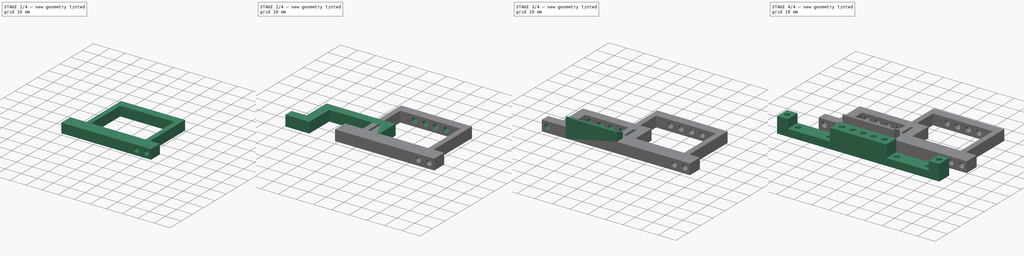
[diagram: build sequence overview — one tinted view per stage of 4, left to right]
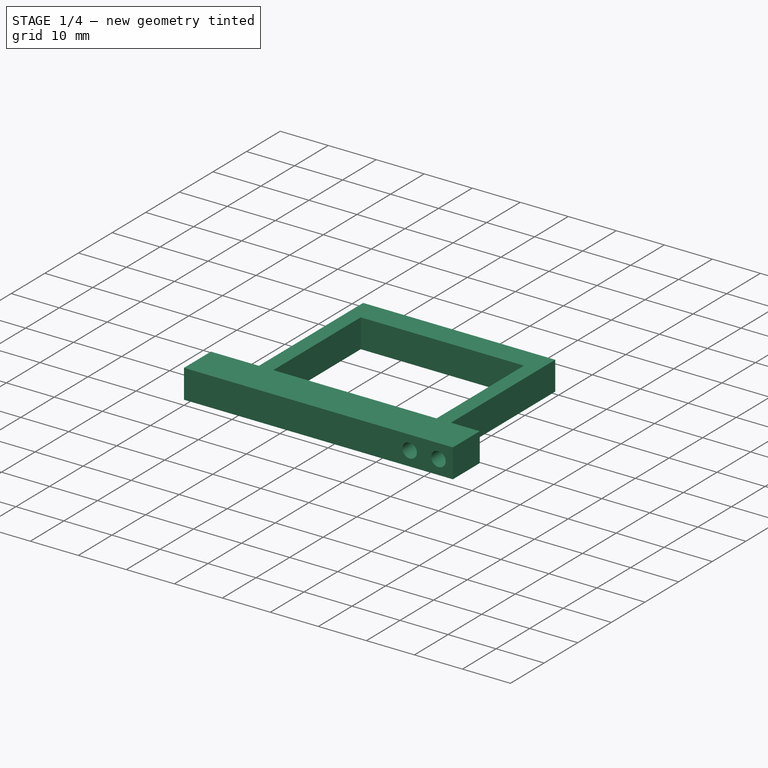
[diagram: stage 1 of 4 — iso view after this stage's code; geometry added in this stage tinted green]
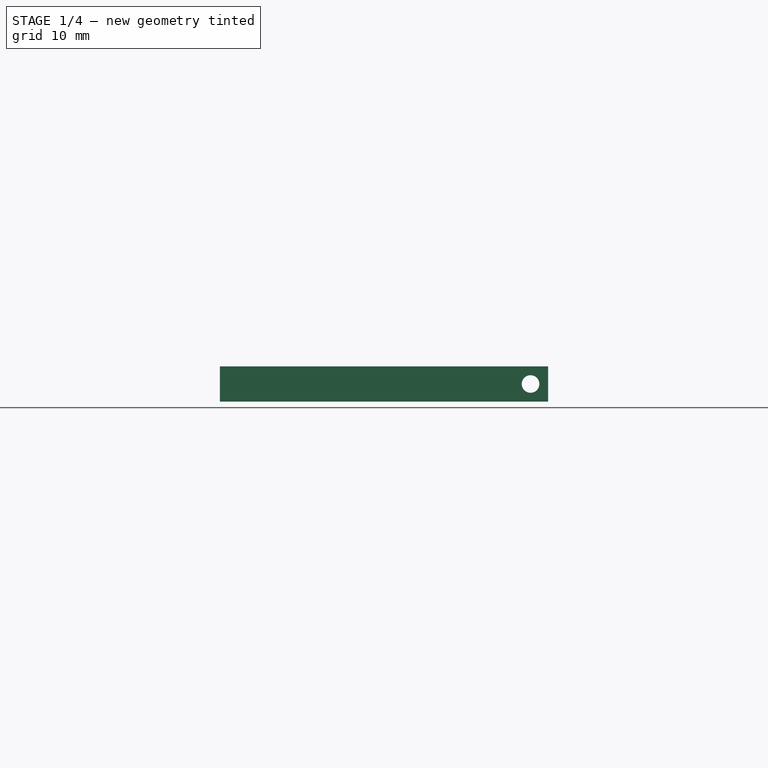
[diagram: stage 1 of 4 — front view after this stage's code; geometry added in this stage tinted green]
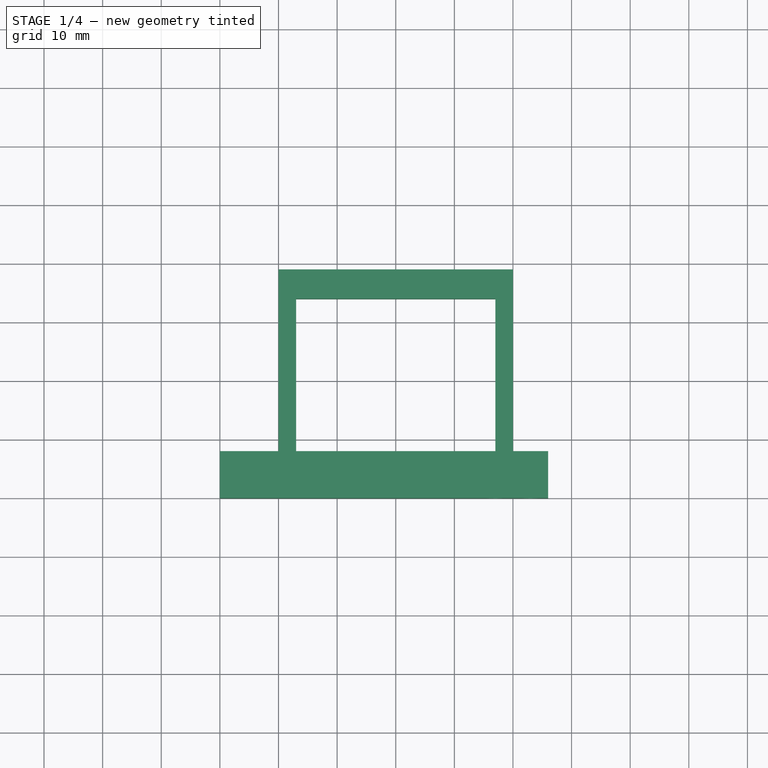
[diagram: stage 1 of 4 — top view after this stage's code; geometry added in this stage tinted green]
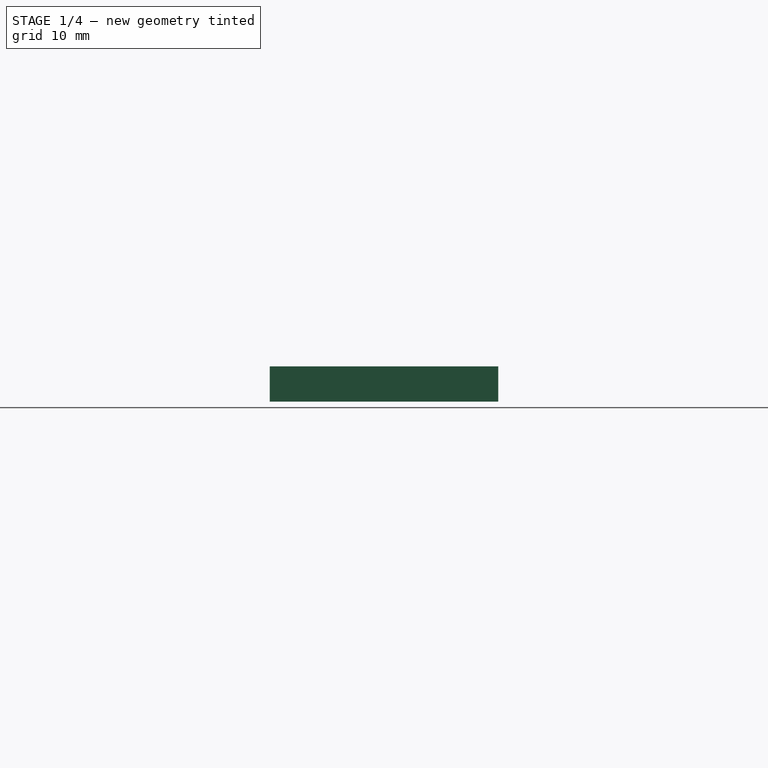
[diagram: stage 1 of 4 — right view after this stage's code; geometry added in this stage tinted green]
FCSTD DOCUMENT  (FreeCAD 0.20R29177 +426 (Git))
Label: BatteryMount
License: All rights reserved
LicenseURL: http://en.wikipedia.org/wiki/All_rights_reserved
objects: Sketcher::SketchObject×9, PartDesign::Pocket×5, PartDesign::Pad×4, PartDesign::Body×3, Spreadsheet::Sheet×1
note: 30 computed .brp shape members not serialized (recipe doc carries the construction recipe); baked Part::Feature solids carry a one-line shape summary decoded from their .brp

FEATURE [PartDesign::Body] Body001  label="Body001TranHolder"
  Group = -> [Sketch002,Pad001,Sketch003,Pocket001,Sketch004,Pad002,Sketch005,Pocket002]
  Origin = -> Origin001
  Tip = -> Pocket002
FEATURE [Sketcher::SketchObject] Sketch006
  FullyConstrained = true
  MapMode = 5
  Support = -> [XY_Plane002]
  expr: Constraints[11] = Spreadsheet.battaryHeight + Spreadsheet.battaryHolderTopThickness
  expr: Constraints[22] = Spreadsheet.battaryHeight
  expr: Constraints[23] = Spreadsheet.battaryWidth
  expr: Constraints[24] = Spreadsheet.battaryHolderBottomThickness
  expr: Constraints[25] = Spreadsheet.battaryHolderSideThickness
  expr: Constraints[29] = Spreadsheet.battaryHolderSideThickness
  expr: Constraints[2] = Spreadsheet.totalBattaryHolderLength
  expr: Constraints[5] = Spreadsheet.battaryHolderBottomThickness
  expr: Constraints[8] = Spreadsheet.screwToSide * 2
  sketch-geometry (12):
    g0: LineSegment StartX=1e-16 StartY=0 StartZ=0 EndX=56 EndY=0 EndZ=0
    g1: LineSegment StartX=56 StartY=0 StartZ=0 EndX=56 EndY=8 EndZ=0
    g2: LineSegment StartX=56 StartY=8 StartZ=0 EndX=50 EndY=8 EndZ=0
    g3: LineSegment StartX=50 StartY=8 StartZ=0 EndX=50 EndY=39 EndZ=0
    g4: LineSegment StartX=50 StartY=39 StartZ=0 EndX=10 EndY=39 EndZ=0
    g5: LineSegment StartX=13 StartY=34 StartZ=0 EndX=47 EndY=34 EndZ=0
    g6: LineSegment StartX=47 StartY=34 StartZ=0 EndX=47 EndY=8 EndZ=0
    g7: LineSegment StartX=47 StartY=8 StartZ=0 EndX=13 EndY=8 EndZ=0
    g8: LineSegment StartX=13 StartY=8 StartZ=0 EndX=13 EndY=34 EndZ=0
    g9: LineSegment StartX=1e-16 StartY=0 StartZ=0 EndX=1e-16 EndY=8 EndZ=0
    g10: LineSegment StartX=1e-16 StartY=8 StartZ=0 EndX=10 EndY=8 EndZ=0
    g11: LineSegment StartX=10 StartY=39 StartZ=0 EndX=10 EndY=8 EndZ=0
  constraints (35):
    c: Coincident(g0,g-1)
    c: Horizontal(g0)
    c: DistanceX(g0,g0) = 56
    c: Coincident(g1,g0)
    c: Vertical(g1)
    c: DistanceY(g1,g1) = 8
    c: Coincident(g2,g1)
    c: Horizontal(g2)
    c: DistanceX(g2,g2) = 6
    c: Coincident(g3,g2)
    c: Vertical(g3)
    c: DistanceY(g3,g3) = 31
    c: Coincident(g4,g3)
    c: Horizontal(g4)
    c: Coincident(g5,g6)
    c: Coincident(g6,g7)
    c: Coincident(g7,g8)
    c: Coincident(g8,g5)
    c: Horizontal(g5)
    c: Horizontal(g7)
    c: Vertical(g6)
    c: Vertical(g8)
    c: DistanceY(g6,g6) = 26
    c: DistanceX(g5,g5) = 34
    c: DistanceY(g0,g7) = 8
    c: DistanceX(g5,g3) = 3
    c: Coincident(g9,g0)
    c: Vertical(g9)
    c: Equal(g1,g9)
    c: DistanceX(g4,g5) = 3
    c: Coincident(g10,g9)
    c: Horizontal(g10)
    c: Coincident(g11,g4)
    c: Coincident(g11,g10)
    c: Vertical(g11)
FEATURE [PartDesign::Pad] Pad003
  Direction = (0,0,1)
  Length = 6
  Length2 = 10
  Profile = -> Sketch006
  ReferenceAxis = -> Sketch006 [N_Axis]
  Type = 0
  expr: Length = Spreadsheet.tranHolderPad
FEATURE [Sketcher::SketchObject] Sketch007
  ExternalGeometry = -> [Pad003]
  FullyConstrained = true
  MapMode = 5
  Placement = pos=(0,0,0) rot=(1,0,0;1.5708rad)
  Support = -> [XZ_Plane002]
  expr: Constraints[2] = Spreadsheet.screwToSide
  expr: Constraints[5] = Spreadsheet.screwToSide * 2
  expr: Constraints[9] = Spreadsheet.screwTight15
  sketch-geometry (4):
    g0: LineSegment StartX=56 StartY=3 StartZ=0 EndX=53 EndY=3 EndZ=0
    g1: LineSegment StartX=53 StartY=3 StartZ=0 EndX=47 EndY=3 EndZ=0
    g2: Circle CenterX=53 CenterY=3 CenterZ=0 NormalX=0 NormalY=0 NormalZ=1 AngleXU=0 Radius=1.5
    g3: Circle CenterX=47 CenterY=3 CenterZ=0 NormalX=0 NormalY=0 NormalZ=1 AngleXU=0 Radius=1.5
  constraints (10):
    c: Horizontal(g0)
    c: Symmetric(g-3,g-3,g0)
    c: DistanceX(g0,g0) = 3
    c: Coincident(g1,g0)
    c: Horizontal(g1)
    c: DistanceX(g1,g1) = 6
    c: Coincident(g2,g0)
    c: Coincident(g3,g1)
    c: Equal(g3,g2)
    c: Radius(g3) = 1.5
FEATURE [PartDesign::Pocket] Pocket003
  BaseFeature = -> Pad003
  Direction = (0,1,-2e-16)
  Length = 5
  Length2 = 5
  Profile = -> Sketch007
  ReferenceAxis = -> Sketch007 [N_Axis]
  Type = 2
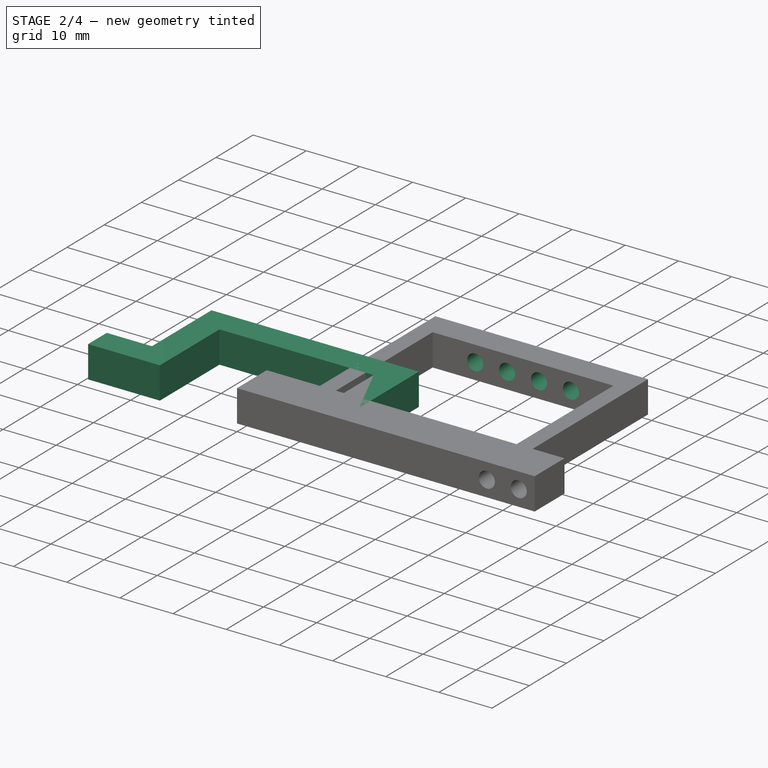
[diagram: stage 2 of 4 — iso view after this stage's code; geometry added in this stage tinted green]
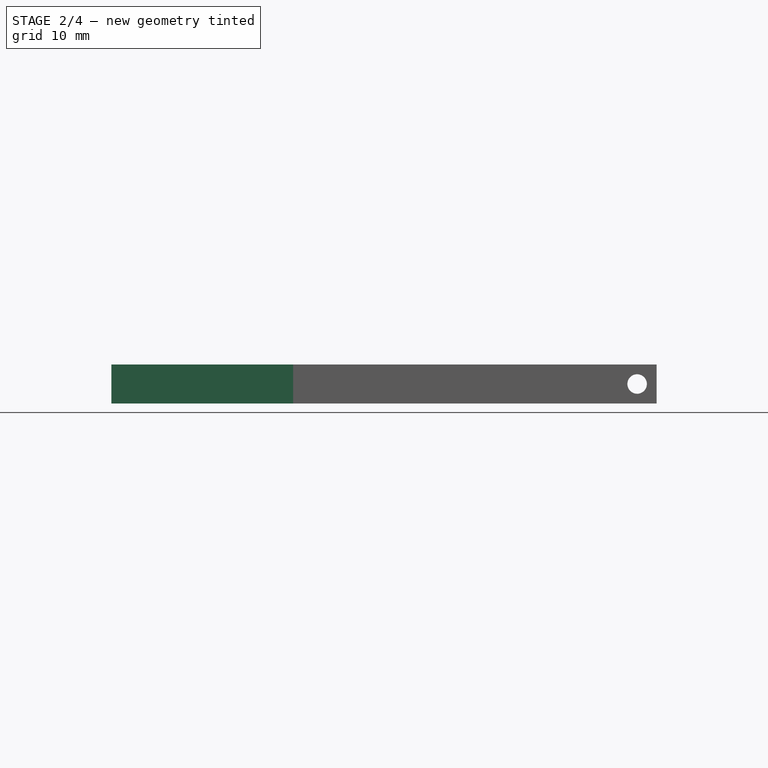
[diagram: stage 2 of 4 — front view after this stage's code; geometry added in this stage tinted green]
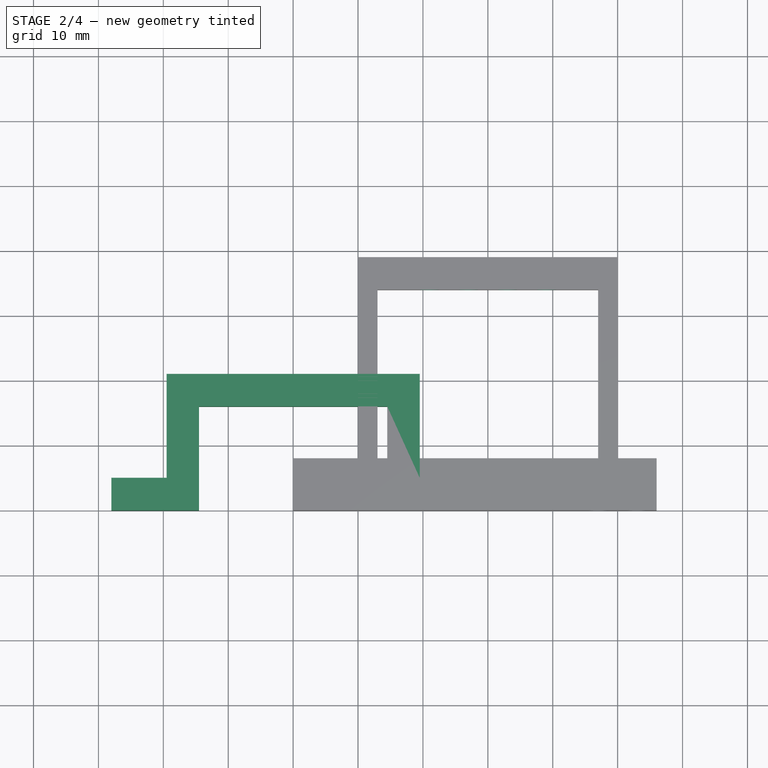
[diagram: stage 2 of 4 — top view after this stage's code; geometry added in this stage tinted green]
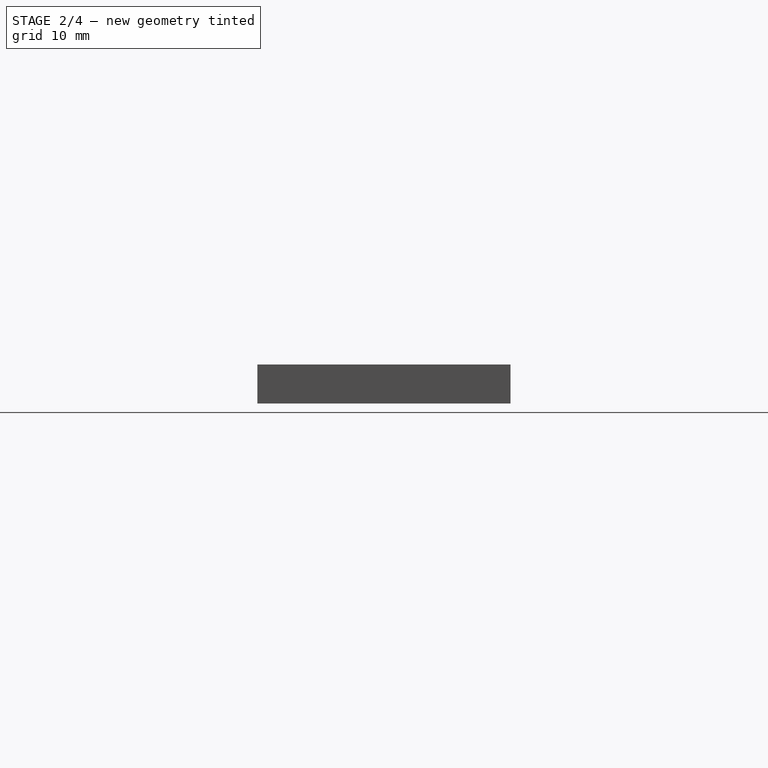
[diagram: stage 2 of 4 — right view after this stage's code; geometry added in this stage tinted green]
FEATURE [PartDesign::Body] Body  label="BodyBaseConn"
  Group = -> [Sketch,Pad,Sketch001,Pocket]
  Origin = -> Origin
  Tip = -> Pocket
FEATURE [Sketcher::SketchObject] Sketch002
  FullyConstrained = true
  MapMode = 5
  Support = -> [XY_Plane001]
  expr: Constraints[24] = Spreadsheet.overRemoteHeight
  expr: Constraints[25] = Spreadsheet.overRemoteThickNess
  expr: Constraints[26] = Spreadsheet.overRemoteThickNess
  expr: Constraints[27] = Spreadsheet.overRemoteThickNess
  expr: Constraints[28] = Spreadsheet.totalOverRemoteDist
  expr: Constraints[29] = Spreadsheet.remoteContentLen
  sketch-geometry (12):
    g0: LineSegment StartX=-28 StartY=0 StartZ=0 EndX=-14.5 EndY=0 EndZ=0
    g1: LineSegment StartX=-28 StartY=0 StartZ=0 EndX=-28 EndY=5 EndZ=0
    g2: LineSegment StartX=-28 StartY=5 StartZ=0 EndX=-19.5 EndY=5 EndZ=0
    g3: LineSegment StartX=-19.5 StartY=5 StartZ=0 EndX=-19.5 EndY=21 EndZ=0
    g4: LineSegment StartX=-19.5 StartY=21 StartZ=0 EndX=19.5 EndY=21 EndZ=0
    g5: LineSegment StartX=19.5 StartY=21 StartZ=0 EndX=19.5 EndY=5 EndZ=0
    g6: LineSegment StartX=19.5 StartY=5 StartZ=0 EndX=28 EndY=5 EndZ=0
    g7: LineSegment StartX=28 StartY=5 StartZ=0 EndX=28 EndY=0 EndZ=0
    g8: LineSegment StartX=28 StartY=0 StartZ=0 EndX=14.5 EndY=0 EndZ=0
    g9: LineSegment StartX=14.5 StartY=0 StartZ=0 EndX=14.5 EndY=16 EndZ=0
    g10: LineSegment StartX=14.5 StartY=16 StartZ=0 EndX=-14.5 EndY=16 EndZ=0
    g11: LineSegment StartX=-14.5 StartY=16 StartZ=0 EndX=-14.5 EndY=0 EndZ=0
  constraints (30):
    c: PointOnObject(g0,g-1)
    c: Coincident(g1,g0)
    c: Vertical(g1)
    c: Coincident(g2,g1)
    c: Horizontal(g2)
    c: Coincident(g3,g2)
    c: Vertical(g3)
    c: Coincident(g4,g3)
    c: Coincident(g5,g4)
    c: Coincident(g6,g5)
    c: Coincident(g7,g6)
    c: Coincident(g8,g7)
    c: PointOnObject(g8,g-1)
    c: Coincident(g9,g8)
    c: Vertical(g9)
    c: Coincident(g10,g9)
    c: Coincident(g11,g10)
    c: Coincident(g0,g11)
    c: Symmetric(g8,g0,g-2)
    c: Symmetric(g7,g0,g-2)
    c: Symmetric(g5,g2,g-2)
    c: Symmetric(g4,g3,g-2)
    c: Symmetric(g10,g9,g-2)
    c: Symmetric(g6,g1,g-2)
    c: DistanceY(g9,g9) = 16
    c: DistanceY(g9,g4) = 5
    c: DistanceX(g2,g0) = 5
    c: DistanceY(g1,g1) = 5
    c: DistanceX(g0,g7) = 56
    c: DistanceX(g10,g10) = 29
FEATURE [PartDesign::Pad] Pad001
  Direction = (0,0,1)
  Length = 6
  Length2 = 10
  Profile = -> Sketch002
  ReferenceAxis = -> Sketch002 [N_Axis]
  Type = 0
  expr: Length = Spreadsheet.tranHolderPad
FEATURE [Sketcher::SketchObject] Sketch008
  ExternalGeometry = -> [Pocket003]
  FullyConstrained = false
  MapMode = 5
  Placement = pos=(0,39,0) rot=(0,0.707107,0.707107;3.14159rad)
  Support = -> [Pocket003]
  expr: Constraints[13] = Spreadsheet.screwTight15
  expr: Constraints[14] = Spreadsheet.screwToSide
  expr: Constraints[15] = Spreadsheet.screwToSide * 2
  sketch-geometry (7):
    g0: LineSegment StartX=-30 StartY=6 StartZ=0 EndX=-30 EndY=3 EndZ=0
    g1: LineSegment StartX=-30 StartY=3 StartZ=0 EndX=-10 EndY=3 EndZ=0
    g2: LineSegment StartX=-30 StartY=3 StartZ=0 EndX=-45.1744 EndY=3 EndZ=0
    g3: Circle CenterX=-33 CenterY=3 CenterZ=0 NormalX=0 NormalY=0 NormalZ=1 AngleXU=0 Radius=1.5
    g4: Circle CenterX=-27 CenterY=3 CenterZ=0 NormalX=0 NormalY=0 NormalZ=1 AngleXU=0 Radius=1.5
    g5: Circle CenterX=-21 CenterY=3 CenterZ=0 NormalX=0 NormalY=0 NormalZ=1 AngleXU=0 Radius=1.5
    g6: Circle CenterX=-39 CenterY=3 CenterZ=0 NormalX=0 NormalY=0 NormalZ=1 AngleXU=0 Radius=1.5
  constraints (17):
    c: Symmetric(g-3,g-3,g0)
    c: PointOnObject(g0,g-3)
    c: Coincident(g1,g0)
    c: Horizontal(g1)
    c: Coincident(g2,g0)
    c: Horizontal(g2)
    c: PointOnObject(g3,g2)
    c: PointOnObject(g5,g1)
    c: Symmetric(g5,g6,g0)
    c: Symmetric(g4,g3,g0)
    c: Equal(g6,g3)
    c: Equal(g6,g4)
    c: Equal(g6,g5)
    c: Radius(g6) = 1.5
    c: DistanceX(g0,g4) = 3
    c: DistanceX(g4,g5) = 6
    c: Symmetric(g-5,g-5,g1)
FEATURE [PartDesign::Pocket] Pocket004
  BaseFeature = -> Pocket003
  Direction = (0,-1,2e-16)
  Length = 5
  Length2 = 5
  Profile = -> Sketch008
  ReferenceAxis = -> Sketch008 [N_Axis]
  Type = 2
FEATURE [PartDesign::Body] Body002  label="Body002BattaryHolder"
  Group = -> [Sketch006,Pad003,Sketch007,Pocket003,Sketch008,Pocket004]
  Origin = -> Origin002
  Tip = -> Pocket004
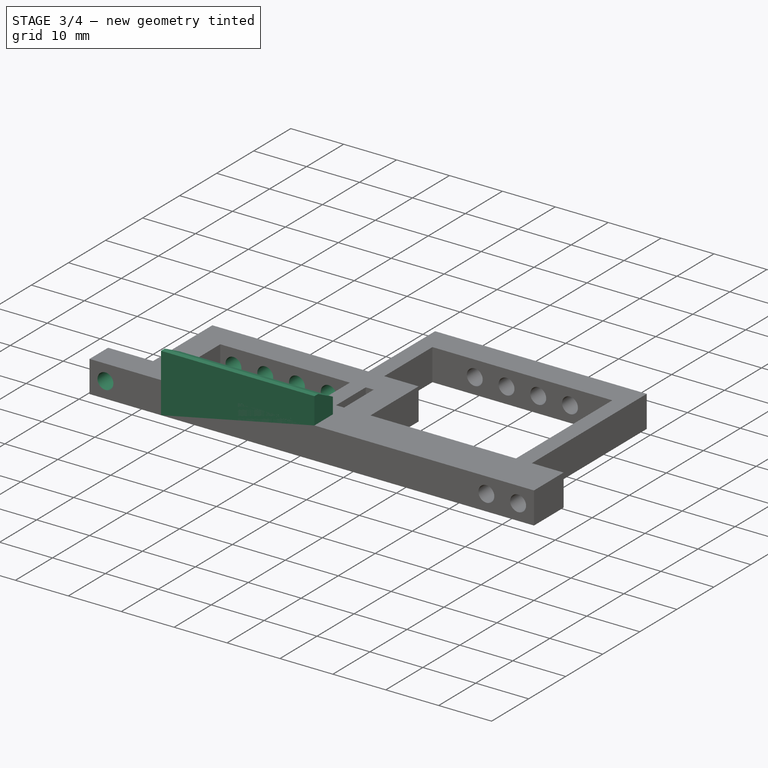
[diagram: stage 3 of 4 — iso view after this stage's code; geometry added in this stage tinted green]
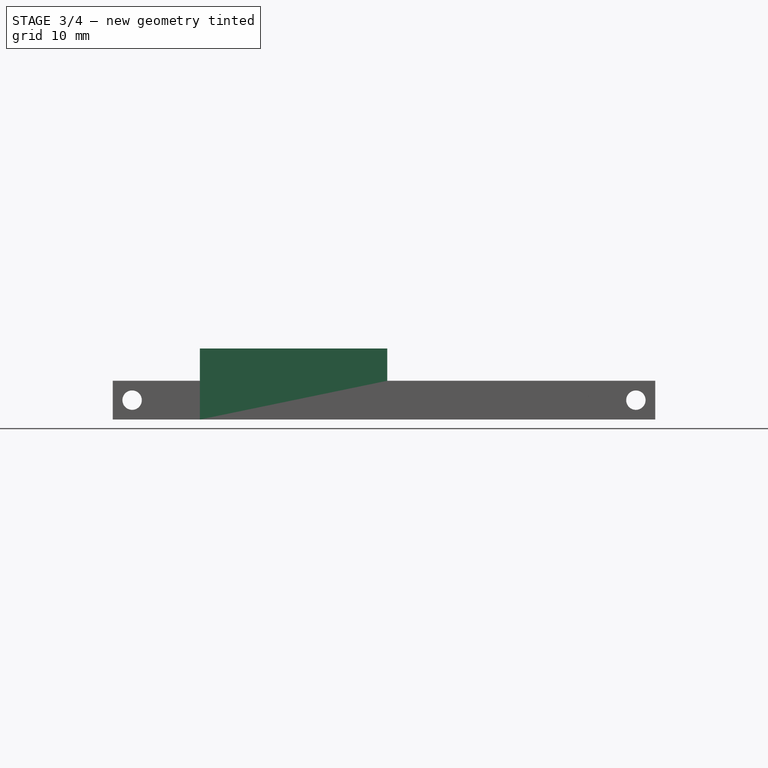
[diagram: stage 3 of 4 — front view after this stage's code; geometry added in this stage tinted green]
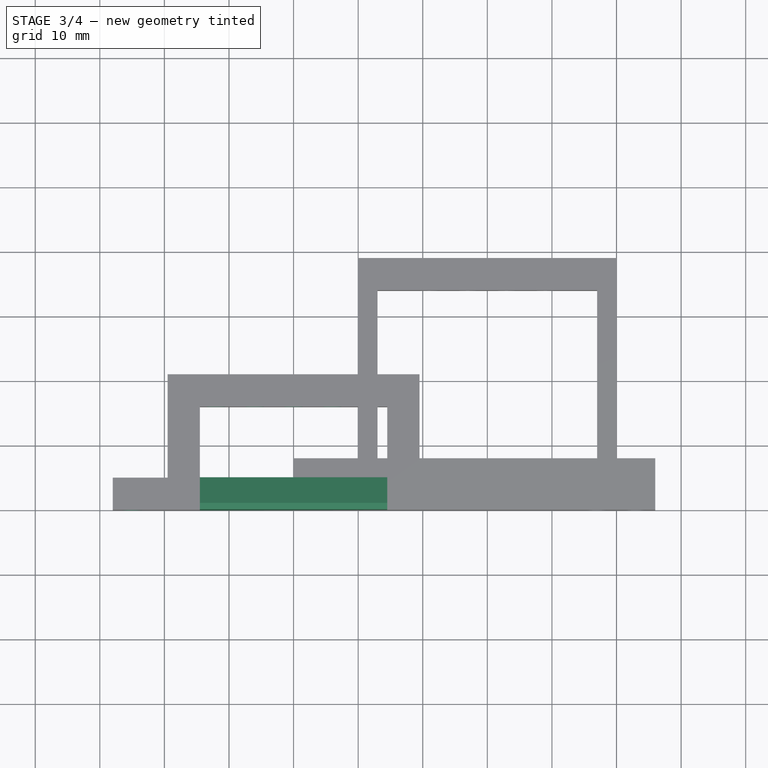
[diagram: stage 3 of 4 — top view after this stage's code; geometry added in this stage tinted green]
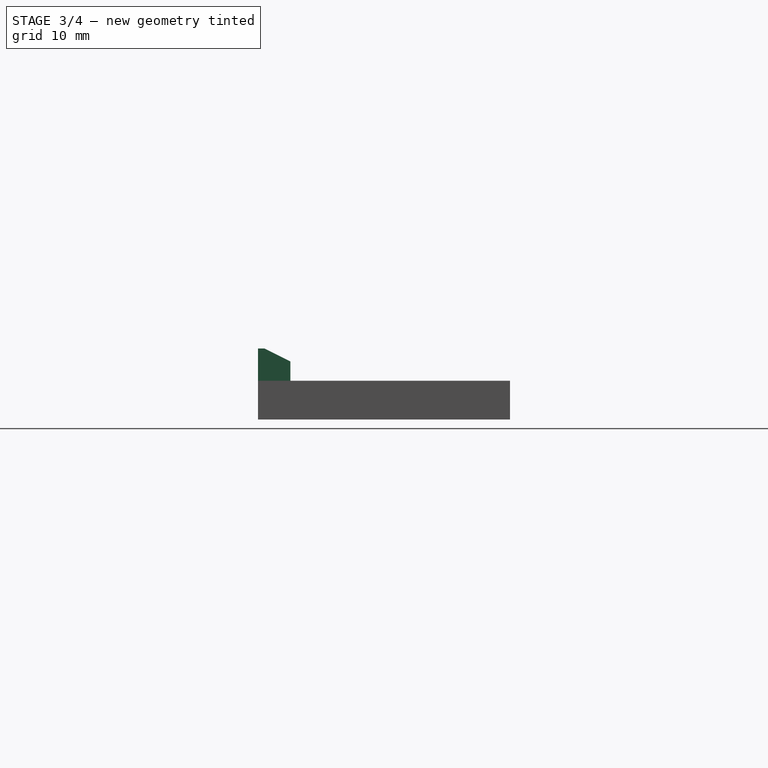
[diagram: stage 3 of 4 — right view after this stage's code; geometry added in this stage tinted green]
FEATURE [Sketcher::SketchObject] Sketch003
  FullyConstrained = true
  MapMode = 5
  Placement = pos=(0,0,0) rot=(1,0,0;1.5708rad)
  Support = -> [XZ_Plane001]
  expr: Constraints[18] = Spreadsheet.screwTight15
  expr: Constraints[19] = Spreadsheet.tranHolderPad / 2
  expr: Constraints[1] = Spreadsheet.overRemoteScrewDist
  expr: Constraints[8] = Spreadsheet.doubleScrewDist
  expr: Constraints[9] = Spreadsheet.doubleScrewDist
  sketch-geometry (8):
    g0: LineSegment StartX=-25 StartY=3 StartZ=0 EndX=25 EndY=3 EndZ=0
    g1: Circle CenterX=-25 CenterY=3 CenterZ=0 NormalX=0 NormalY=0 NormalZ=1 AngleXU=0 Radius=1.5
    g2: Circle CenterX=25 CenterY=3 CenterZ=0 NormalX=0 NormalY=0 NormalZ=1 AngleXU=0 Radius=1.5
    g3: Circle CenterX=0 CenterY=3 CenterZ=0 NormalX=0 NormalY=0 NormalZ=1 AngleXU=0 Radius=1.5
    g4: Circle CenterX=-6 CenterY=3 CenterZ=0 NormalX=0 NormalY=0 NormalZ=1 AngleXU=0 Radius=1.5
    g5: Circle CenterX=6 CenterY=3 CenterZ=0 NormalX=0 NormalY=0 NormalZ=1 AngleXU=0 Radius=1.5
    g6: Circle CenterX=-12 CenterY=3 CenterZ=0 NormalX=0 NormalY=0 NormalZ=1 AngleXU=0 Radius=1.5
    g7: Circle CenterX=12 CenterY=3 CenterZ=0 NormalX=0 NormalY=0 NormalZ=1 AngleXU=0 Radius=1.5
  constraints (20):
    c: Symmetric(g0,g0,g-2)
    c: DistanceX(g0,g0) = 50
    c: Coincident(g1,g0)
    c: Coincident(g2,g0)
    c: PointOnObject(g3,g0)
    c: PointOnObject(g3,g-2)
    c: PointOnObject(g4,g0)
    c: PointOnObject(g6,g0)
    c: DistanceX(g4,g3) = 6
    c: DistanceX(g6,g4) = 6
    c: Symmetric(g6,g7,g-2)
    c: Symmetric(g4,g5,g-2)
    c: Equal(g1,g6)
    c: Equal(g1,g4)
    c: Equal(g1,g3)
    c: Equal(g1,g5)
    c: Equal(g1,g7)
    c: Equal(g1,g2)
    c: Radius(g1) = 1.5
    c: DistanceY(g-1,g1) = 3
FEATURE [PartDesign::Pocket] Pocket001  label="Pocket001ForESC"
  BaseFeature = -> Pad001
  Direction = (0,1,-2e-16)
  Length = 5
  Length2 = 5
  Midplane = true
  Profile = -> Sketch003
  ReferenceAxis = -> Sketch003 [N_Axis]
  Type = 1
FEATURE [Sketcher::SketchObject] Sketch004
  ExternalGeometry = -> [Pocket001]
  FullyConstrained = true
  MapMode = 5
  Support = -> [XY_Plane001]
  expr: Constraints[10] = Spreadsheet.overRemoteThickNess
  sketch-geometry (4):
    g0: LineSegment StartX=-14.5 StartY=5 StartZ=0 EndX=14.5 EndY=5 EndZ=0
    g1: LineSegment StartX=14.5 StartY=5 StartZ=0 EndX=14.5 EndY=0 EndZ=0
    g2: LineSegment StartX=14.5 StartY=0 StartZ=0 EndX=-14.5 EndY=0 EndZ=0
    g3: LineSegment StartX=-14.5 StartY=0 StartZ=0 EndX=-14.5 EndY=5 EndZ=0
  constraints (12):
    c: Coincident(g0,g1)
    c: Coincident(g1,g2)
    c: Coincident(g2,g3)
    c: Coincident(g3,g0)
    c: Horizontal(g0)
    c: Horizontal(g2)
    c: Vertical(g1)
    c: Vertical(g3)
    c: PointOnObject(g0,g-3)
    c: PointOnObject(g1,g-4)
    c: DistanceY(g3,g3) = 5
    c: PointOnObject(g1,g-1)
FEATURE [PartDesign::Pad] Pad002  label="Pad002ForTran"
  BaseFeature = -> Pocket001
  Direction = (0,0,1)
  Length = 11
  Length2 = 10
  Profile = -> Sketch004
  ReferenceAxis = -> Sketch004 [N_Axis]
  Type = 0
  expr: Length = Spreadsheet.tranHolderPad + 5
FEATURE [Sketcher::SketchObject] Sketch005
  ExternalGeometry = -> [Pad002]
  FullyConstrained = true
  MapMode = 5
  Placement = pos=(0,0,0) rot=(0.57735,0.57735,0.57735;2.0944rad)
  Support = -> [YZ_Plane001]
  sketch-geometry (3):
    g0: LineSegment StartX=1 StartY=11 StartZ=0 EndX=5 EndY=9 EndZ=0
    g1: LineSegment StartX=1 StartY=11 StartZ=0 EndX=5 EndY=11 EndZ=0
    g2: LineSegment StartX=5 StartY=11 StartZ=0 EndX=5 EndY=9 EndZ=0
  constraints (8):
    c: PointOnObject(g0,g-4)
    c: PointOnObject(g0,g-3)
    c: Coincident(g1,g0)
    c: Coincident(g2,g1)
    c: Coincident(g2,g0)
    c: Coincident(g1,g-4)
    c: DistanceY(g-3,g0) = 3
    c: DistanceX(g1,g1) = 4
FEATURE [PartDesign::Pocket] Pocket002
  BaseFeature = -> Pad002
  Direction = (-1,2e-16,-3e-16)
  Length = 5
  Length2 = 5
  Midplane = true
  Profile = -> Sketch005
  ReferenceAxis = -> Sketch005 [N_Axis]
  Type = 1
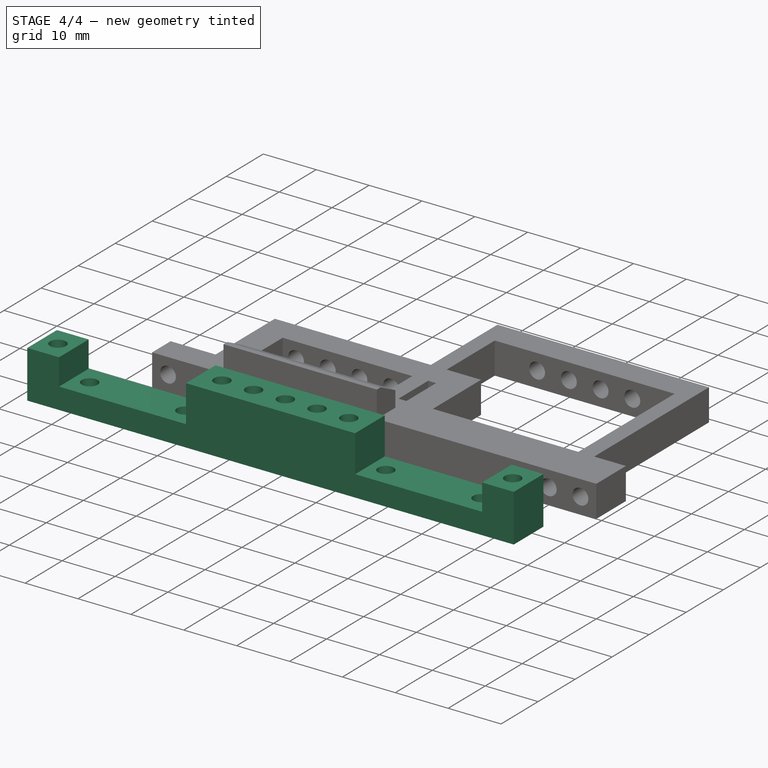
[diagram: stage 4 of 4 — iso view after this stage's code; geometry added in this stage tinted green]
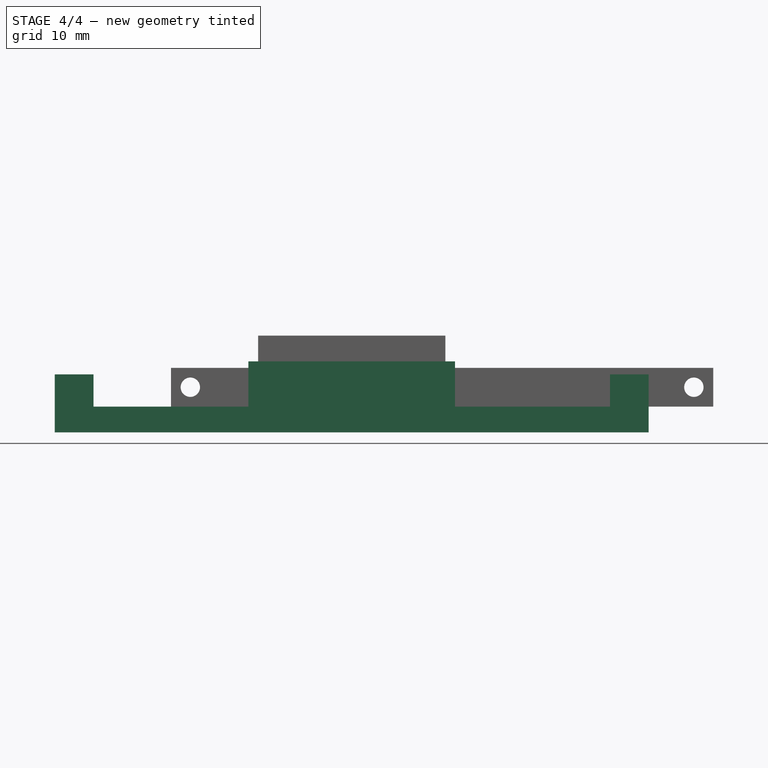
[diagram: stage 4 of 4 — front view after this stage's code; geometry added in this stage tinted green]
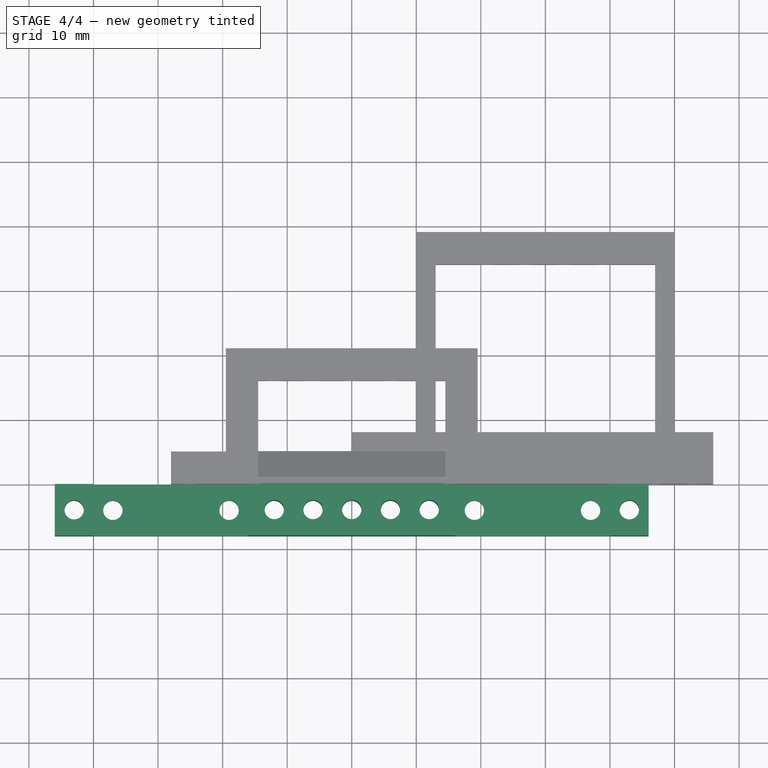
[diagram: stage 4 of 4 — top view after this stage's code; geometry added in this stage tinted green]
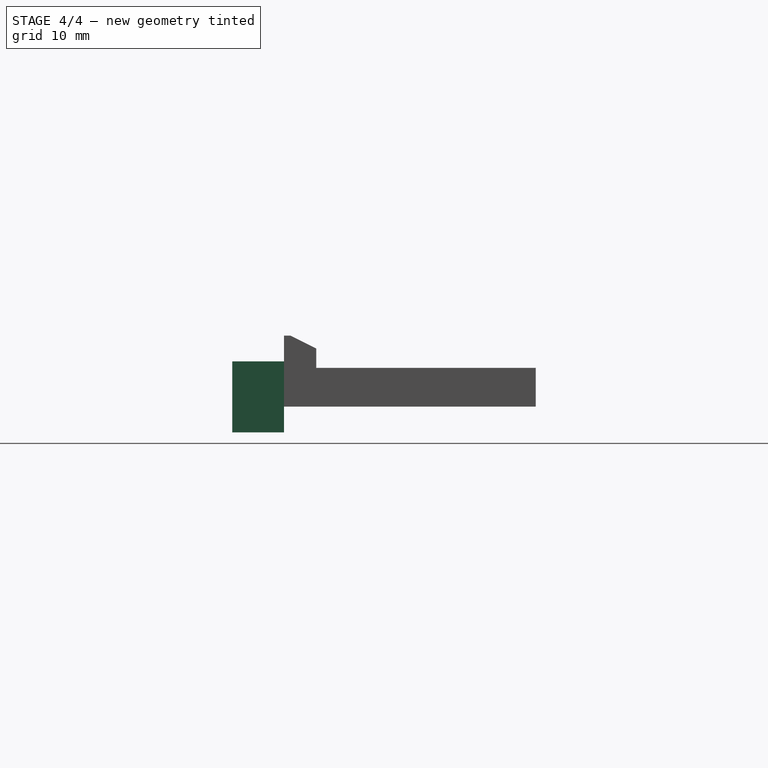
[diagram: stage 4 of 4 — right view after this stage's code; geometry added in this stage tinted green]
FEATURE [Spreadsheet::Sheet] Spreadsheet
  cells = A2=frontMountInnerWidth; B2(frontMountInnerWidth)=32; A3=frontMountOuterWidth; B3(frontMountOuterWidth)=80; A4=frontMountSideExt; B4(frontMountSideExt)=6; A5=frontMountPad; B5(frontMountPad)=8; A6=frontMountDepth; B6(frontMountDepth)=5; A7=frontMountUpperDepth; B7(frontMountUpperDepth)=4; A8=screwToSide; B8(screwToSide)=3; A9=screwTight15; B9(screwTight15)=1.5; A11=frontMountCenterDepth; B11(frontMountCenterDepth)=7; A13=overRemoteScrewDist; B13(overRemoteScrewDist)=50; A14=overRemoteShrink; B14(overRemoteShrink)=4; A15=overRemoteThickNess; B15(overRemoteThickNess)=5; A16=totalOverRemoteDist; B16(totalOverRemoteDist)==overRemoteScrewDist + screwToSide * 2; A17=remoteHeight; B17=20; A18=overRemoteHeight; B18(overRemoteHeight)==B17 - frontMountUpperDepth; A19=totalOverRemoteHeight; B19(totalOverRemoteHeight)==overRemoteHeight + overRemoteThickNess; A20=remoteContentLen; B20(remoteContentLen)=29; A21=doubleScrewDist; B21(doubleScrewDist)==B8 * 2; A22=tranHolderPad; B22(tranHolderPad)=6; A25=battaryWidth; B25(battaryWidth)=34; A26=battaryHeight; B26(battaryHeight)=26; A27=totalBattaryHolderLength; B27(totalBattaryHolderLength)==54 + 2; A28=battaryHolderBottomThickness; B28(battaryHolderBottomThickness)=8; A29=battaryHolderTopThickness; B29(battaryHolderTopThickness)=5; A30=battaryHolderSideThickness; B30(battaryHolderSideThickness)=3
FEATURE [Sketcher::SketchObject] Sketch
  FullyConstrained = true
  MapMode = 5
  Placement = pos=(0,0,0) rot=(1,0,0;1.5708rad)
  Support = -> [XZ_Plane]
  expr: Constraints[11] = Spreadsheet.frontMountSideExt
  expr: Constraints[18] = -Spreadsheet.frontMountUpperDepth
  expr: Constraints[1] = Spreadsheet.frontMountInnerWidth
  expr: Constraints[23] = -Spreadsheet.frontMountDepth
  expr: Constraints[28] = Spreadsheet.frontMountSideExt
  expr: Constraints[39] = Spreadsheet.frontMountInnerWidth
  expr: Constraints[44] = -Spreadsheet.frontMountCenterDepth
  expr: Constraints[6] = Spreadsheet.frontMountOuterWidth
  sketch-geometry (18):
    g0: LineSegment StartX=-16 StartY=-4 StartZ=0 EndX=16 EndY=-4 EndZ=0
    g1: LineSegment StartX=-16 StartY=-4 StartZ=0 EndX=-40 EndY=-4 EndZ=0
    g2: LineSegment StartX=16 StartY=-4 StartZ=0 EndX=40 EndY=-4 EndZ=0
    g3: LineSegment StartX=-40 StartY=-4 StartZ=0 EndX=-46 EndY=-4 EndZ=0
    g4: LineSegment StartX=40 StartY=-4 StartZ=0 EndX=46 EndY=-4 EndZ=0
    g5: LineSegment StartX=-46 StartY=-4 StartZ=0 EndX=-46 EndY=0 EndZ=0
    g6: LineSegment StartX=46 StartY=-4 StartZ=0 EndX=46 EndY=0 EndZ=0
    g7: LineSegment StartX=-46 StartY=0 StartZ=0 EndX=-46 EndY=5 EndZ=0
    g8: LineSegment StartX=46 StartY=0 StartZ=0 EndX=46 EndY=5 EndZ=0
    g9: LineSegment StartX=-46 StartY=5 StartZ=0 EndX=-40 EndY=5 EndZ=0
    g10: LineSegment StartX=46 StartY=5 StartZ=0 EndX=40 EndY=5 EndZ=0
    g11: LineSegment StartX=-40 StartY=5 StartZ=0 EndX=-40 EndY=0 EndZ=0
    g12: LineSegment StartX=40 StartY=5 StartZ=0 EndX=40 EndY=0 EndZ=0
    g13: LineSegment StartX=-40 StartY=0 StartZ=0 EndX=-16 EndY=0 EndZ=0
    g14: LineSegment StartX=40 StartY=0 StartZ=0 EndX=16 EndY=0 EndZ=0
    g15: LineSegment StartX=-16 StartY=0 StartZ=0 EndX=-16 EndY=7 EndZ=0
    g16: LineSegment StartX=16 StartY=0 StartZ=0 EndX=16 EndY=7 EndZ=0
    g17: LineSegment StartX=-16 StartY=7 StartZ=0 EndX=16 EndY=7 EndZ=0
  constraints (47):
    c: Symmetric(g0,g0,g-2)
    c: DistanceX(g0,g0) = 32
    c: Coincident(g1,g0)
    c: Horizontal(g1)
    c: Coincident(g2,g0)
    c: Symmetric(g2,g1,g-2)
    c: DistanceX(g1,g2) = 80
    c: Coincident(g3,g1)
    c: Horizontal(g3)
    c: Coincident(g4,g2)
    c: Symmetric(g4,g3,g-2)
    c: DistanceX(g4,g4) = 6
    c: Coincident(g5,g3)
    c: PointOnObject(g5,g-1)
    c: Vertical(g5)
    c: Coincident(g6,g4)
    c: PointOnObject(g6,g-1)
    c: Vertical(g6)
    c: DistanceY(g6,g6) = -4
    c: Coincident(g7,g5)
    c: Vertical(g7)
    c: Coincident(g8,g6)
    c: Symmetric(g8,g7,g-2)
    c: DistanceY(g8,g8) = -5
    c: Coincident(g9,g7)
    c: Horizontal(g9)
    c: Coincident(g10,g8)
    c: Symmetric(g9,g10,g-2)
    c: DistanceX(g9,g9) = 6
    c: Coincident(g11,g9)
    c: PointOnObject(g11,g-1)
    c: Vertical(g11)
    c: Coincident(g12,g10)
    c: PointOnObject(g12,g-1)
    c: Vertical(g12)
    c: Coincident(g13,g11)
    c: Coincident(g14,g12)
    c: Horizontal(g13)
    c: Symmetric(g13,g14,g-2)
    c: DistanceX(g13,g14) = 32
    c: Coincident(g15,g13)
    c: Vertical(g15)
    c: Coincident(g16,g14)
    c: Symmetric(g16,g15,g-2)
    c: DistanceY(g16,g16) = -7
    c: Coincident(g17,g15)
    c: Coincident(g17,g16)
FEATURE [PartDesign::Pad] Pad
  Direction = (0,-1,-2e-16)
  Length = 8
  Length2 = 10
  Placement = pos=(0,0,0) rot=(1,0,0;1.5708rad)
  Profile = -> Sketch
  ReferenceAxis = -> Sketch [N_Axis]
  Type = 0
  expr: Length = Spreadsheet.frontMountPad
FEATURE [Sketcher::SketchObject] Sketch001
  FullyConstrained = true
  MapMode = 5
  Support = -> [XY_Plane]
  expr: Constraints[13] = Spreadsheet.screwToSide * 2
  expr: Constraints[19] = Spreadsheet.screwToSide * 2
  expr: Constraints[1] = Spreadsheet.frontMountOuterWidth + Spreadsheet.screwToSide * 2
  expr: Constraints[20] = Spreadsheet.screwToSide * 2
  expr: Constraints[25] = Spreadsheet.frontMountOuterWidth - Spreadsheet.screwToSide * 2
  expr: Constraints[26] = Spreadsheet.frontMountInnerWidth + Spreadsheet.screwToSide * 2
  expr: Constraints[8] = Spreadsheet.screwTight15
  expr: Constraints[9] = -Spreadsheet.frontMountPad / 2
  sketch-geometry (12):
    g0: LineSegment StartX=-43 StartY=-4 StartZ=0 EndX=43 EndY=-4 EndZ=0
    g1: Circle CenterX=-43 CenterY=-4 CenterZ=0 NormalX=0 NormalY=0 NormalZ=1 AngleXU=0 Radius=1.5
    g2: Circle CenterX=43 CenterY=-4 CenterZ=0 NormalX=0 NormalY=0 NormalZ=1 AngleXU=0 Radius=1.5
    g3: Circle CenterX=0 CenterY=-4 CenterZ=0 NormalX=0 NormalY=0 NormalZ=1 AngleXU=0 Radius=1.5
    g4: Circle CenterX=-6 CenterY=-4 CenterZ=0 NormalX=0 NormalY=0 NormalZ=1 AngleXU=0 Radius=1.5
    g5: Circle CenterX=6 CenterY=-4 CenterZ=0 NormalX=0 NormalY=0 NormalZ=1 AngleXU=0 Radius=1.5
    g6: Circle CenterX=-12 CenterY=-4 CenterZ=0 NormalX=0 NormalY=0 NormalZ=1 AngleXU=0 Radius=1.5
    g7: Circle CenterX=12 CenterY=-4 CenterZ=0 NormalX=0 NormalY=0 NormalZ=1 AngleXU=0 Radius=1.5
    g8: Circle CenterX=-37 CenterY=-4 CenterZ=0 NormalX=0 NormalY=0 NormalZ=1 AngleXU=0 Radius=1.5
    g9: Circle CenterX=37 CenterY=-4 CenterZ=0 NormalX=0 NormalY=0 NormalZ=1 AngleXU=0 Radius=1.5
    g10: Circle CenterX=19 CenterY=-4 CenterZ=0 NormalX=0 NormalY=0 NormalZ=1 AngleXU=0 Radius=1.5
    g11: Circle CenterX=-19 CenterY=-4 CenterZ=0 NormalX=0 NormalY=0 NormalZ=1 AngleXU=0 Radius=1.5
  constraints (31):
    c: Symmetric(g0,g0,g-2)
    c: DistanceX(g0,g0) = 86
    c: Coincident(g1,g0)
    c: Coincident(g2,g0)
    c: PointOnObject(g3,g0)
    c: PointOnObject(g3,g-2)
    c: Equal(g1,g3)
    c: Equal(g1,g2)
    c: Radius(g1) = 1.5
    c: DistanceY(g-1,g2) = -4
    c: PointOnObject(g4,g0)
    c: Equal(g4,g3)
    c: Equal(g5,g3)
    c: DistanceX(g4,g3) = 6
    c: Symmetric(g5,g4,g-2)
    c: PointOnObject(g6,g0)
    c: PointOnObject(g7,g0)
    c: Equal(g6,g7)
    c: Equal(g7,g3)
    c: DistanceX(g6,g4) = 6
    c: DistanceX(g5,g7) = 6
    c: PointOnObject(g8,g0)
    c: PointOnObject(g10,g0)
    c: Symmetric(g11,g10,g-2)
    c: Symmetric(g8,g9,g-2)
    c: DistanceX(g8,g9) = 74
    c: DistanceX(g11,g10) = 38
    c: Equal(g10,g9)
    c: Equal(g9,g11)
    c: Equal(g11,g8)
    c: Equal(g8,g3)
FEATURE [PartDesign::Pocket] Pocket
  BaseFeature = -> Pad
  Direction = (0,0,-1)
  Length = 5
  Length2 = 5
  Midplane = true
  Placement = pos=(0,0,0) rot=(1,0,0;1.5708rad)
  Profile = -> Sketch001
  ReferenceAxis = -> Sketch001 [N_Axis]
  Type = 1
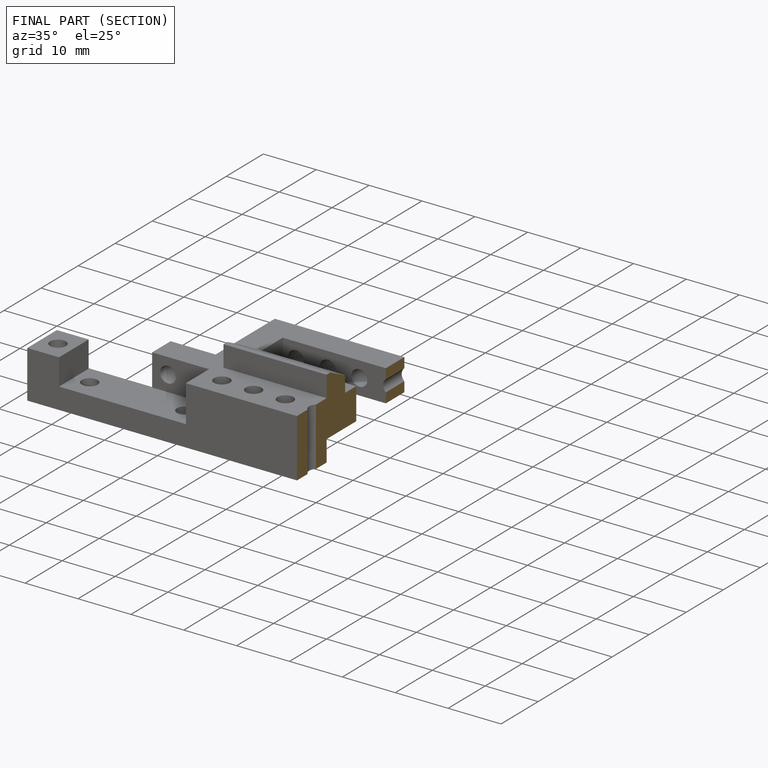
[diagram: finished part — half-section view (interior)]
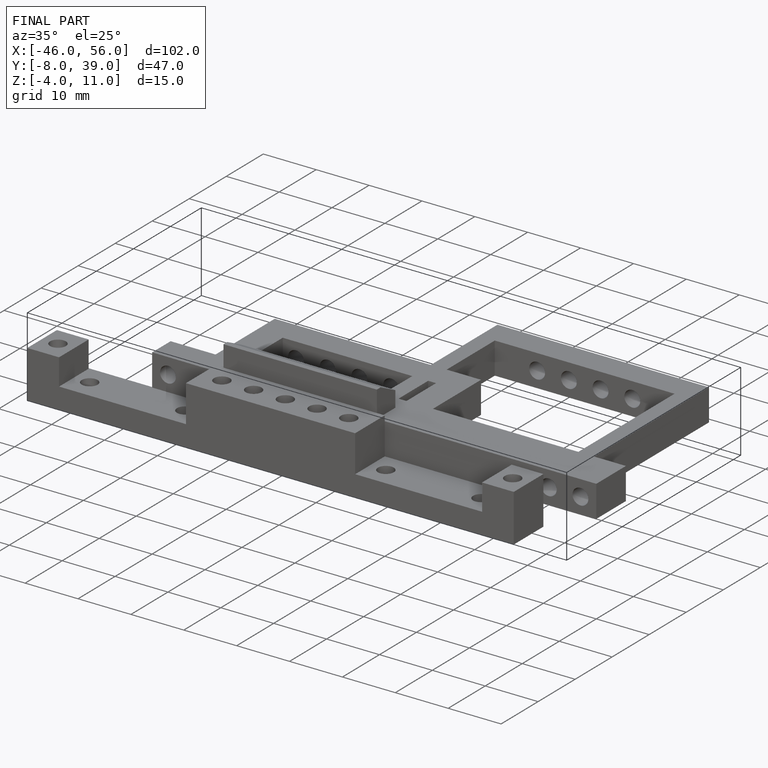
[diagram: finished part — iso view with bounding-box wireframe]
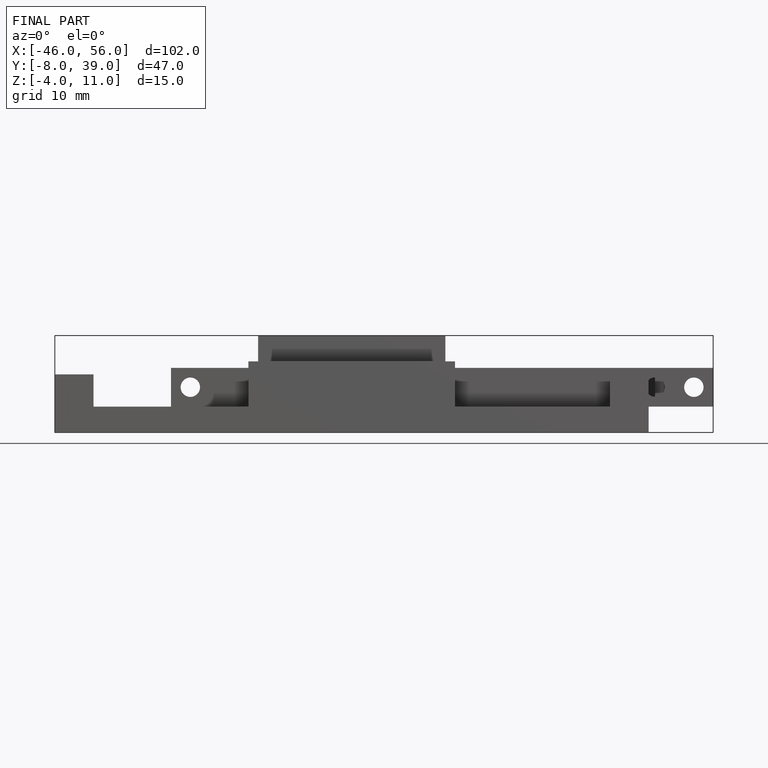
[diagram: finished part — front view with bounding-box wireframe]
